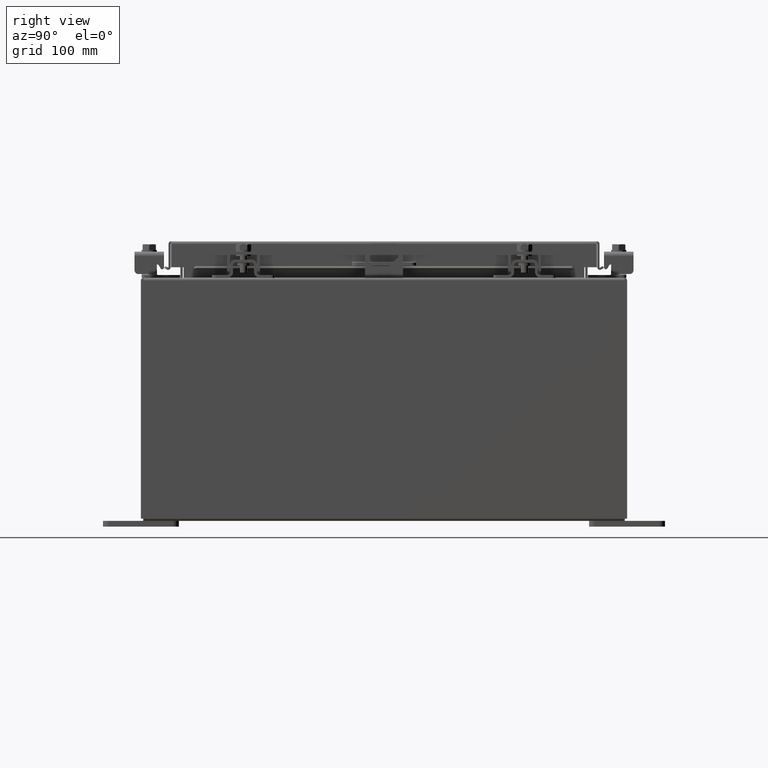
[diagram: clean part render]
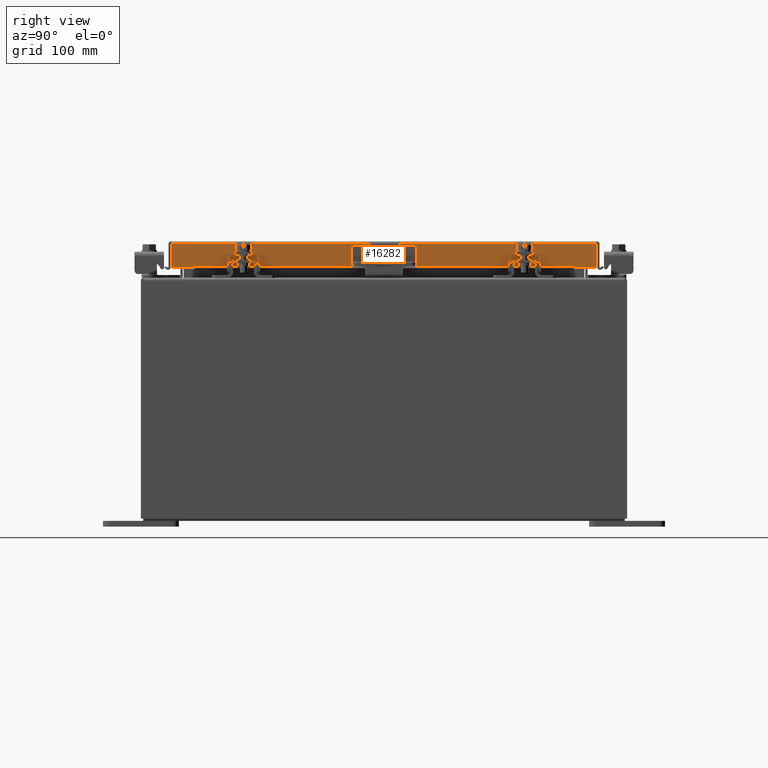
[diagram: same view with one face highlighted and labeled with its STEP entity id]
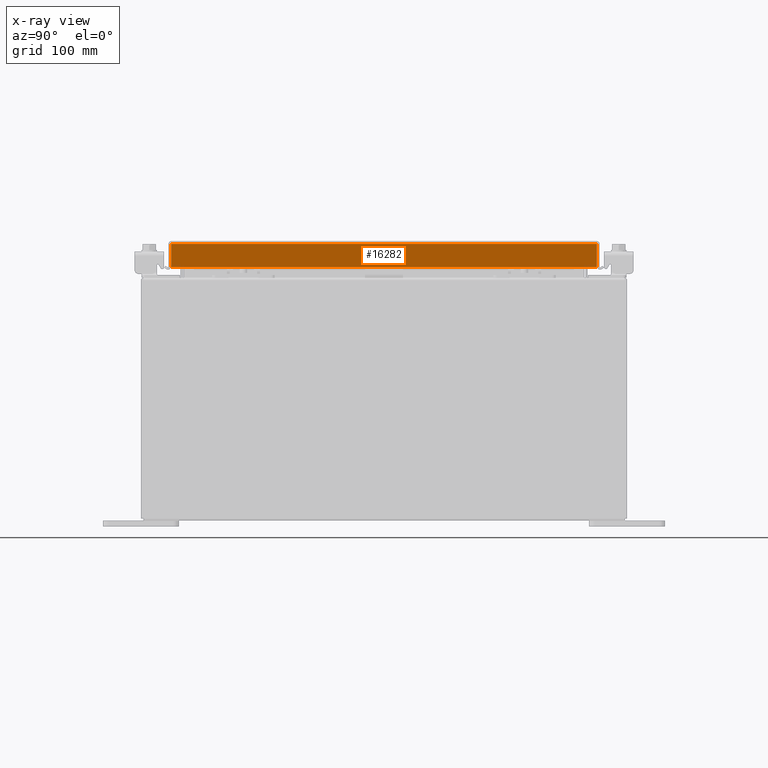
[diagram: x-ray of the same camera — body ghosted, the highlighted face saturated]
A machine part, right view. The second image highlights one B-rep face of the part: STEP entity #16282.
The next image is the same camera in x-ray: the body ghosted, the highlighted face saturated — about 0% of this face is hidden behind the body in this view.
In plain terms, the highlighted planar face has unit normal (1, 0, 0).
Its self-contained STEP definition (entity closure, byte-faithful):
#19 = EDGE_CURVE ( 'NONE', #3452, #4093, #11452, .T. ) ;
#206 = CARTESIAN_POINT ( 'NONE',  ( 5.078000000000001200, -7.005157864376264400, -0.8499999999999996400 ) ) ;
#1181 = VECTOR ( 'NONE', #4733, 39.37007874015748100 ) ;
#1202 = DIRECTION ( 'NONE',  ( 2.818880942772360100E-015, 0.0000000000000000000, -1.000000000000000000 ) ) ;
#1979 = DIRECTION ( 'NONE',  ( -2.171061248348209200E-031, -1.000000000000000000, 7.701855070945201600E-017 ) ) ;
#2010 = ORIENTED_EDGE ( 'NONE', *, *, #19, .F. ) ;
#2189 = CARTESIAN_POINT ( 'NONE',  ( 5.077999999999996700, -6.255157864376264400, -0.8500000000000006400 ) ) ;
#2287 = VECTOR ( 'NONE', #17453, 39.37007874015748100 ) ;
#2746 = ORIENTED_EDGE ( 'NONE', *, *, #5055, .F. ) ;
#3292 = CARTESIAN_POINT ( 'NONE',  ( 5.078000000000001200, -7.094000000000000300, -0.8499999999999996400 ) ) ;
#3421 = VECTOR ( 'NONE', #24606, 39.37007874015748100 ) ;
#3452 = VERTEX_POINT ( 'NONE', #12273 ) ;
#3465 = LINE ( 'NONE', #13367, #11655 ) ;
#3468 = VERTEX_POINT ( 'NONE', #206 ) ;
#3821 = ORIENTED_EDGE ( 'NONE', *, *, #11115, .F. ) ;
#4093 = VERTEX_POINT ( 'NONE', #2189 ) ;
#4185 = EDGE_CURVE ( 'NONE', #3468, #8935, #9401, .T. ) ;
#4733 = DIRECTION ( 'NONE',  ( 0.0000000000000000000, -1.000000000000000000, 0.0000000000000000000 ) ) ;
#5055 = EDGE_CURVE ( 'NONE', #7226, #3452, #5903, .T. ) ;
#5903 = LINE ( 'NONE', #16779, #1181 ) ;
#6087 = VECTOR ( 'NONE', #20371, 39.37007874015748100 ) ;
#7184 = ORIENTED_EDGE ( 'NONE', *, *, #11665, .T. ) ;
#7226 = VERTEX_POINT ( 'NONE', #9850 ) ;
#8835 = FACE_OUTER_BOUND ( 'NONE', #22926, .T. ) ;
#8935 = VERTEX_POINT ( 'NONE', #11772 ) ;
#9401 = LINE ( 'NONE', #22580, #3421 ) ;
#9850 = CARTESIAN_POINT ( 'NONE',  ( 5.078000000000001200, 7.005157864376275100, -0.8499999999999996400 ) ) ;
#11115 = EDGE_CURVE ( 'NONE', #4093, #3468, #18958, .T. ) ;
#11238 = CARTESIAN_POINT ( 'NONE',  ( 5.077999999999998500, 0.0000000000000000000, 1.457509108340962400E-014 ) ) ;
#11452 = LINE ( 'NONE', #20453, #6087 ) ;
#11655 = VECTOR ( 'NONE', #23358, 39.37007874015748100 ) ;
#11665 = EDGE_CURVE ( 'NONE', #21113, #8935, #18930, .T. ) ;
#11772 = CARTESIAN_POINT ( 'NONE',  ( 5.077999999999998500, -7.005157864376269700, -0.08769999999999897300 ) ) ;
#12273 = CARTESIAN_POINT ( 'NONE',  ( 5.077999999999996700, 6.255157864376273300, -0.8500000000000006400 ) ) ;
#13262 = DIRECTION ( 'NONE',  ( 1.000000000000000000, 0.0000000000000000000, 2.818880942772360100E-015 ) ) ;
#13367 = CARTESIAN_POINT ( 'NONE',  ( 5.077999999999998500, 7.005157864376269700, 6.349184700164955700E-014 ) ) ;
#13790 = ORIENTED_EDGE ( 'NONE', *, *, #25715, .T. ) ;
#16282 = ADVANCED_FACE ( 'NONE', ( #8835 ), #23258, .T. ) ;
#16779 = CARTESIAN_POINT ( 'NONE',  ( 5.078000000000001200, -7.094000000000000300, -0.8499999999999996400 ) ) ;
#17453 = DIRECTION ( 'NONE',  ( 0.0000000000000000000, -1.000000000000000000, 0.0000000000000000000 ) ) ;
#18065 = CARTESIAN_POINT ( 'NONE',  ( 5.077999999999998500, -6.754526897220028000E-018, -0.08769999999999951400 ) ) ;
#18301 = VECTOR ( 'NONE', #1979, 39.37007874015748100 ) ;
#18930 = LINE ( 'NONE', #18065, #18301 ) ;
#18958 = LINE ( 'NONE', #3292, #2287 ) ;
#19317 = ORIENTED_EDGE ( 'NONE', *, *, #4185, .F. ) ;
#20371 = DIRECTION ( 'NONE',  ( 0.0000000000000000000, -1.000000000000000000, 0.0000000000000000000 ) ) ;
#20453 = CARTESIAN_POINT ( 'NONE',  ( 5.077999999999996700, 6.255157864376273300, -0.8500000000000006400 ) ) ;
#21113 = VERTEX_POINT ( 'NONE', #21367 ) ;
#21367 = CARTESIAN_POINT ( 'NONE',  ( 5.077999999999998500, 7.005157864376269700, -0.08769999999999951400 ) ) ;
#22580 = CARTESIAN_POINT ( 'NONE',  ( 5.077999999999998500, -7.005157864376269700, -0.07469999999999978000 ) ) ;
#22926 = EDGE_LOOP ( 'NONE', ( #19317, #3821, #2010, #2746, #13790, #7184 ) ) ;
#23258 = PLANE ( 'NONE',  #25021 ) ;
#23358 = DIRECTION ( 'NONE',  ( -2.818880942772360100E-015, -6.982962677686267500E-015, 1.000000000000000000 ) ) ;
#24606 = DIRECTION ( 'NONE',  ( -2.818880942772360100E-015, -6.982962677686267500E-015, 1.000000000000000000 ) ) ;
#25021 = AXIS2_PLACEMENT_3D ( 'NONE', #11238, #13262, #1202 ) ;
#25715 = EDGE_CURVE ( 'NONE', #7226, #21113, #3465, .T. ) ;